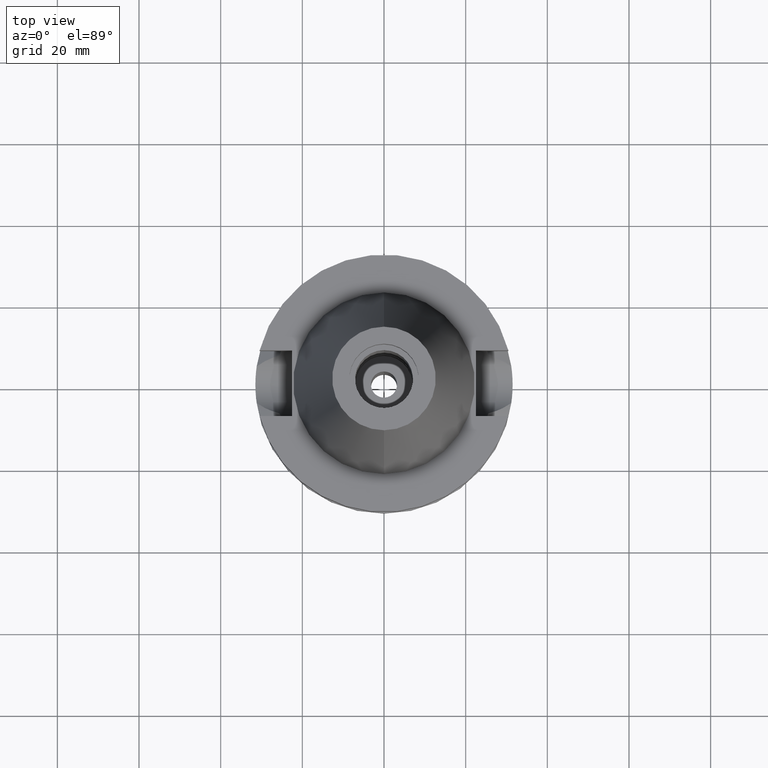
[diagram: clean part render]
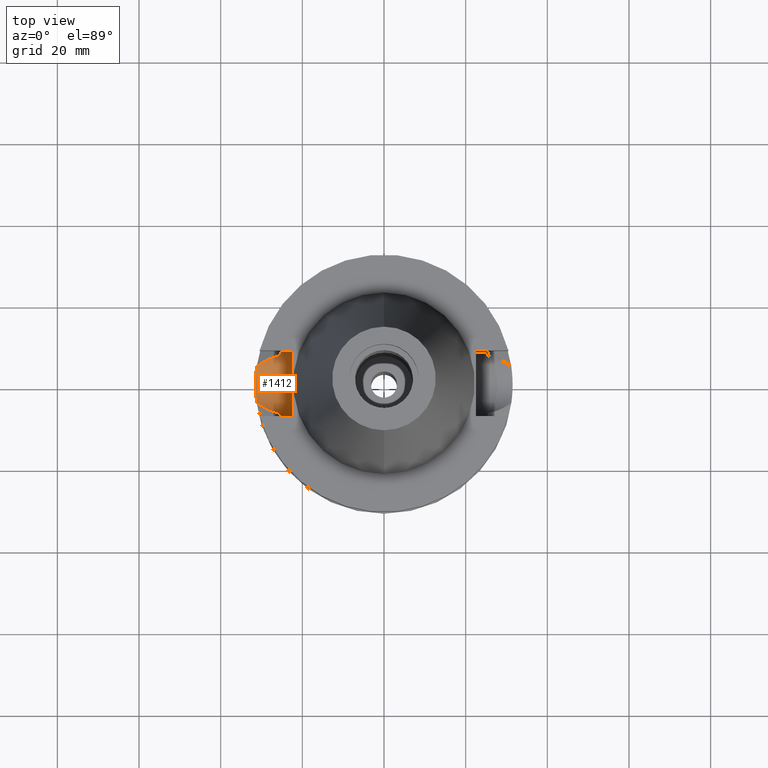
[diagram: same view with one face highlighted and labeled with its STEP entity id]
A machine part, top view. The second image highlights one B-rep face of the part: STEP entity #1412.
In plain terms, the highlighted cylindrical surface (edge-blend (fillet) strip) has radius 8.05 mm, axis along (-1, 0, 0).
Its self-contained STEP definition (entity closure, byte-faithful):
#2 = EDGE_CURVE ( 'NONE', #1198, #42, #3094, .T. ) ;
#3 = CARTESIAN_POINT ( 'NONE',  ( -28.61883714321365346, 5.991211993611456066, -20.32900284995578843 ) ) ;
#10 = ORIENTED_EDGE ( 'NONE', *, *, #698, .T. ) ;
#17 = CARTESIAN_POINT ( 'NONE',  ( -31.17899877608999759, -4.485536235554000051, -21.63449434733000132 ) ) ;
#18 = CARTESIAN_POINT ( 'NONE',  ( -25.31206084004278267, 7.845614529399052905, -16.75329855851851235 ) ) ;
#20 = EDGE_CURVE ( 'NONE', #388, #1972, #1044, .T. ) ;
#36 = CARTESIAN_POINT ( 'NONE',  ( -28.37664392239686606, 6.100223204543339328, -20.20526077322584868 ) ) ;
#42 = VERTEX_POINT ( 'NONE', #568 ) ;
#69 = CARTESIAN_POINT ( 'NONE',  ( -29.71532401695840164, -5.436691314662930097, -20.88878191549011731 ) ) ;
#135 = CARTESIAN_POINT ( 'NONE',  ( -31.17899877608999759, 4.485536235554000051, -21.63449434733000132 ) ) ;
#145 = CARTESIAN_POINT ( 'NONE',  ( -31.47006483083458050, -1.570420134126573775, -22.88512809629085254 ) ) ;
#171 = DIRECTION ( 'NONE',  ( 1.000000000000000000, 0.0000000000000000000, 0.0000000000000000000 ) ) ;
#188 = CARTESIAN_POINT ( 'NONE',  ( -25.27269700110156236, 7.971767412703377964, -16.08147680840639993 ) ) ;
#195 = CARTESIAN_POINT ( 'NONE',  ( -25.37573308857943744, -7.637710303739495110, -17.49818662950806569 ) ) ;
#214 = AXIS2_PLACEMENT_3D ( 'NONE', #666, #1637, #2616 ) ;
#243 = CARTESIAN_POINT ( 'NONE',  ( -25.33293017119234847, -7.777974374871667429, -17.02562462713745361 ) ) ;
#262 = CIRCLE ( 'NONE', #661, 8.050000000000000711 ) ;
#263 = VECTOR ( 'NONE', #2975, 1000.000000000000000 ) ;
#292 = CARTESIAN_POINT ( 'NONE',  ( -29.92556320886829369, 5.316957788948731611, -20.99587041032646795 ) ) ;
#300 = CARTESIAN_POINT ( 'NONE',  ( -30.85566716005951093, -4.730837794846110889, -21.46988817435007135 ) ) ;
#312 = CARTESIAN_POINT ( 'NONE',  ( -25.53175183775000079, -7.097862220092999941, -18.74774300138999905 ) ) ;
#376 = CARTESIAN_POINT ( 'NONE',  ( -31.29155434613432973, -3.622344445574517291, -22.14169315534166671 ) ) ;
#388 = VERTEX_POINT ( 'NONE', #2203 ) ;
#438 = ORIENTED_EDGE ( 'NONE', *, *, #2, .T. ) ;
#447 = CARTESIAN_POINT ( 'NONE',  ( -25.32122245610180400, 7.815962707351904015, -16.87706809357090165 ) ) ;
#455 = CARTESIAN_POINT ( 'NONE',  ( -25.24772266957999634, -8.049999999999997158, -15.58999736273356085 ) ) ;
#493 = CARTESIAN_POINT ( 'NONE',  ( -25.44392837589918699, -7.408239565059870024, -18.11709494172737323 ) ) ;
#533 = CARTESIAN_POINT ( 'NONE',  ( -27.99630131625950114, 6.260814674882757558, -20.01081440634503394 ) ) ;
#568 = CARTESIAN_POINT ( 'NONE',  ( -25.53175183775000079, -7.097862220092999941, -18.74774300138999905 ) ) ;
#642 = LINE ( 'NONE', #3003, #672 ) ;
#648 = DIRECTION ( 'NONE',  ( 0.0000000000000000000, -1.000000000000000000, 0.0000000000000000000 ) ) ;
#661 = AXIS2_PLACEMENT_3D ( 'NONE', #3090, #171, #648 ) ;
#666 = CARTESIAN_POINT ( 'NONE',  ( -31.50000000000000000, 0.0000000000000000000, -14.94999999999999929 ) ) ;
#672 = VECTOR ( 'NONE', #850, 1000.000000000000000 ) ;
#681 = CARTESIAN_POINT ( 'NONE',  ( -25.24772266958000344, -8.050000000000000711, -14.94999999999999929 ) ) ;
#685 = CARTESIAN_POINT ( 'NONE',  ( -25.53175183775000079, 7.097862220092999941, -18.74774300138999905 ) ) ;
#691 = CARTESIAN_POINT ( 'NONE',  ( -31.38373212837024795, 2.710341632984772264, -22.53260975833440227 ) ) ;
#698 = EDGE_CURVE ( 'NONE', #388, #1814, #1259, .T. ) ;
#704 = CARTESIAN_POINT ( 'NONE',  ( -31.47014091591460883, 1.569800303106027251, -22.88544884417187575 ) ) ;
#717 = CARTESIAN_POINT ( 'NONE',  ( -26.79449840331362864, 6.719479771258584755, -19.39575631969516678 ) ) ;
#742 = CARTESIAN_POINT ( 'NONE',  ( -27.56759267593632856, 6.431641193339387996, -19.79151494985046256 ) ) ;
#776 = CARTESIAN_POINT ( 'NONE',  ( -25.53175183775000079, 7.097862220092999941, -18.74774300138999905 ) ) ;
#795 = B_SPLINE_CURVE_WITH_KNOTS ( 'NONE', 3,
 ( #2355, #1439, #493, #1456, #195, #2406, #2597, #243, #907, #2113, #2419, #2849, #455, #681 ),
 .UNSPECIFIED., .F., .F.,
 ( 4, 2, 2, 1, 1, 2, 2, 4 ),
 ( 0.0000000000000000000, 0.2499999999999754641, 0.3749999999999630851, 0.4374999999999556466, 0.4687499999999517608, 0.4843749999999512057, 0.4999999999999505951, 1.000000000000000000 ),
 .UNSPECIFIED. ) ;
#837 = ORIENTED_EDGE ( 'NONE', *, *, #3030, .F. ) ;
#838 = CARTESIAN_POINT ( 'NONE',  ( -31.17899877608999759, -4.485536235554000051, -21.63449434733000132 ) ) ;
#850 = DIRECTION ( 'NONE',  ( -1.000000000000000000, 1.551559937893000172E-14, 1.680856599384000216E-14 ) ) ;
#889 = CARTESIAN_POINT ( 'NONE',  ( -31.39942175770064381, 2.522462273896719953, -22.59713453206252964 ) ) ;
#907 = CARTESIAN_POINT ( 'NONE',  ( -25.32844777903620681, -7.792527725354048584, -16.96974754110885897 ) ) ;
#956 = CARTESIAN_POINT ( 'NONE',  ( -31.17899877608999759, 4.485536235554000051, -21.63449434733000132 ) ) ;
#1009 = CARTESIAN_POINT ( 'NONE',  ( -31.17899877608999759, -4.485536235554000051, -21.63449434733000132 ) ) ;
#1016 = CARTESIAN_POINT ( 'NONE',  ( -27.36173902561492355, 6.509397575667601465, -19.68615276869749664 ) ) ;
#1026 = CARTESIAN_POINT ( 'NONE',  ( -29.23902439686415988, -5.689665267726423004, -20.64570116389015553 ) ) ;
#1044 = LINE ( 'NONE', #2005, #263 ) ;
#1055 = CARTESIAN_POINT ( 'NONE',  ( -25.24772266958000344, -8.050000000000000711, -14.94999999999999929 ) ) ;
#1056 = CARTESIAN_POINT ( 'NONE',  ( -27.91791818722234808, -6.325778374670826487, -19.97107508940342058 ) ) ;
#1107 = CARTESIAN_POINT ( 'NONE',  ( -31.50001712310213620, -0.7926383445690665663, -23.00007365985223018 ) ) ;
#1168 = EDGE_CURVE ( 'NONE', #2659, #1814, #1489, .T. ) ;
#1195 = CARTESIAN_POINT ( 'NONE',  ( -31.27141562376842288, 3.805445729920238218, -22.05502235412102863 ) ) ;
#1198 = VERTEX_POINT ( 'NONE', #17 ) ;
#1208 = CARTESIAN_POINT ( 'NONE',  ( -29.08039899388900196, 5.770905815522946014, -20.56470933436780157 ) ) ;
#1209 = CARTESIAN_POINT ( 'NONE',  ( -25.43789037938550379, 7.435491690476241367, -18.11672414061894898 ) ) ;
#1259 = B_SPLINE_CURVE_WITH_KNOTS ( 'NONE', 3,
 ( #1609, #2572, #2329, #188, #2414, #1671, #2362, #18, #1943, #2907, #447, #3119, #1209, #1660 ),
 .UNSPECIFIED., .F., .F.,
 ( 4, 2, 2, 1, 1, 2, 2, 4 ),
 ( 0.0000000000000000000, 0.2500000000000029421, 0.3750000000000057176, 0.4375000000000057732, 0.4687500000000042744, 0.4843750000000034417, 0.5000000000000025535, 1.000000000000000000 ),
 .UNSPECIFIED. ) ;
#1264 = CARTESIAN_POINT ( 'NONE',  ( -30.49988824974146695, -4.971524544256481271, -21.28877941431118970 ) ) ;
#1281 = CARTESIAN_POINT ( 'NONE',  ( -26.81195495032019593, -6.745956321615020457, -19.40544405722906873 ) ) ;
#1310 = ORIENTED_EDGE ( 'NONE', *, *, #1729, .T. ) ;
#1341 = CARTESIAN_POINT ( 'NONE',  ( -31.35088811482348348, -3.082665263967356850, -22.39703123798121354 ) ) ;
#1412 = ADVANCED_FACE ( 'NONE', ( #1809 ), #2808, .F. ) ;
#1434 = CARTESIAN_POINT ( 'NONE',  ( -31.33117692260842801, 3.261988001766285450, -22.31220474935663489 ) ) ;
#1439 = CARTESIAN_POINT ( 'NONE',  ( -25.48482038766597313, -7.266679548433788050, -18.43222872448825100 ) ) ;
#1456 = CARTESIAN_POINT ( 'NONE',  ( -25.39164951572487894, -7.584807667336962211, -17.65197957159464082 ) ) ;
#1489 = B_SPLINE_CURVE_WITH_KNOTS ( 'NONE', 3,
 ( #1737, #1923, #2698, #292, #2153, #2413, #1208, #3, #36, #533, #2886, #742, #1982, #1498, #1016, #717, #2427, #776 ),
 .UNSPECIFIED., .F., .F.,
 ( 4, 2, 2, 2, 2, 1, 1, 2, 2, 4 ),
 ( 0.0000000000000000000, 0.2499999999999962252, 0.3749999999999940048, 0.4999999999999917843, 0.6249999999999895639, 0.6874999999999891198, 0.7187499999999887867, 0.7343749999999893419, 0.7499999999999898970, 1.000000000000000000 ),
 .UNSPECIFIED. ) ;
#1498 = CARTESIAN_POINT ( 'NONE',  ( -27.39725008970879117, 6.496136476067881915, -19.70433075667453693 ) ) ;
#1577 = CARTESIAN_POINT ( 'NONE',  ( -31.22605527071346643, -4.148998008600059961, -21.85135399485416841 ) ) ;
#1609 = CARTESIAN_POINT ( 'NONE',  ( -25.24772266958000344, 8.050000000000000711, -14.94999999999999929 ) ) ;
#1637 = DIRECTION ( 'NONE',  ( -1.000000000000000000, 0.0000000000000000000, 0.0000000000000000000 ) ) ;
#1660 = CARTESIAN_POINT ( 'NONE',  ( -25.53175183775000079, 7.097862220092999941, -18.74774300138999905 ) ) ;
#1671 = CARTESIAN_POINT ( 'NONE',  ( -25.29454954118293131, 7.902007388340077654, -16.48871296865240410 ) ) ;
#1729 = EDGE_CURVE ( 'NONE', #2148, #1972, #262, .T. ) ;
#1737 = CARTESIAN_POINT ( 'NONE',  ( -31.17899877608999759, 4.485536235554000051, -21.63449434733000132 ) ) ;
#1763 = ORIENTED_EDGE ( 'NONE', *, *, #2950, .F. ) ;
#1808 = CARTESIAN_POINT ( 'NONE',  ( -22.50000000000000000, 8.050000000000000711, -14.94999999999999929 ) ) ;
#1809 = FACE_OUTER_BOUND ( 'NONE', #1930, .T. ) ;
#1814 = VERTEX_POINT ( 'NONE', #685 ) ;
#1815 = CARTESIAN_POINT ( 'NONE',  ( -31.20293914673900915, -4.319126524894971730, -21.74616125111140263 ) ) ;
#1824 = CARTESIAN_POINT ( 'NONE',  ( -22.50000000000000000, -8.050000000000000711, -14.94999999999999929 ) ) ;
#1883 = ORIENTED_EDGE ( 'NONE', *, *, #1168, .F. ) ;
#1923 = CARTESIAN_POINT ( 'NONE',  ( -30.86112095468211081, 4.726700171866855094, -21.47266466825546161 ) ) ;
#1930 = EDGE_LOOP ( 'NONE', ( #2405, #1763, #1310, #2581, #10, #1883, #837, #438 ) ) ;
#1943 = CARTESIAN_POINT ( 'NONE',  ( -25.31652402624244047, 7.831177078177598005, -16.81429685341876379 ) ) ;
#1972 = VERTEX_POINT ( 'NONE', #1808 ) ;
#1982 = CARTESIAN_POINT ( 'NONE',  ( -27.46559892851986362, 6.470389082572618022, -19.73931484959222260 ) ) ;
#1995 = CARTESIAN_POINT ( 'NONE',  ( -29.07366700018058836, -5.772145045828368737, -20.56127400145020800 ) ) ;
#2005 = CARTESIAN_POINT ( 'NONE',  ( -25.24772266958000344, 8.050000000000000711, -14.94999999999999929 ) ) ;
#2064 = CARTESIAN_POINT ( 'NONE',  ( -31.49998286221021004, 0.7939987288854174485, -22.99992628266776862 ) ) ;
#2113 = CARTESIAN_POINT ( 'NONE',  ( -25.32550670071060850, -7.802071535306276395, -16.93256103013005287 ) ) ;
#2148 = VERTEX_POINT ( 'NONE', #1824 ) ;
#2153 = CARTESIAN_POINT ( 'NONE',  ( -29.72262445055801194, 5.432525443549970134, -20.89238680196415032 ) ) ;
#2203 = CARTESIAN_POINT ( 'NONE',  ( -25.24772266958000344, 8.050000000000000711, -14.94999999999999929 ) ) ;
#2302 = CARTESIAN_POINT ( 'NONE',  ( -31.38545342354494139, -2.710832595742835860, -22.54018087763055433 ) ) ;
#2329 = CARTESIAN_POINT ( 'NONE',  ( -25.25396625246039406, 8.030896711162142765, -15.59378553529055900 ) ) ;
#2355 = CARTESIAN_POINT ( 'NONE',  ( -25.53175183775000079, -7.097862220092999941, -18.74774300138999905 ) ) ;
#2362 = CARTESIAN_POINT ( 'NONE',  ( -25.30215890781841992, 7.877570599498848303, -16.61088255777515243 ) ) ;
#2405 = ORIENTED_EDGE ( 'NONE', *, *, #2702, .T. ) ;
#2406 = CARTESIAN_POINT ( 'NONE',  ( -25.35412323723021899, -7.708830947932256983, -17.27007949472962167 ) ) ;
#2413 = CARTESIAN_POINT ( 'NONE',  ( -29.29923135315856797, 5.659886605233277912, -20.67639207771007293 ) ) ;
#2414 = CARTESIAN_POINT ( 'NONE',  ( -25.28050147970205330, 7.946982733726524195, -16.24437200640843315 ) ) ;
#2419 = CARTESIAN_POINT ( 'NONE',  ( -25.32419709970849198, -7.806318959900148791, -16.91578803901756345 ) ) ;
#2427 = CARTESIAN_POINT ( 'NONE',  ( -26.19531547285233231, 6.915459947427307519, -19.08864711194411967 ) ) ;
#2480 = CARTESIAN_POINT ( 'NONE',  ( -28.90787425853358883, -5.853261068877619877, -20.47661666503943678 ) ) ;
#2545 = CARTESIAN_POINT ( 'NONE',  ( -31.27028647256796390, -3.801301904420796962, -22.04879116226246083 ) ) ;
#2572 = CARTESIAN_POINT ( 'NONE',  ( -25.24772266958000344, 8.050000000000000711, -15.27000344021509370 ) ) ;
#2581 = ORIENTED_EDGE ( 'NONE', *, *, #20, .F. ) ;
#2597 = CARTESIAN_POINT ( 'NONE',  ( -25.34388450889786526, -7.742333382928201502, -17.15666984720025923 ) ) ;
#2616 = DIRECTION ( 'NONE',  ( 0.0000000000000000000, 0.0000000000000000000, -1.000000000000000000 ) ) ;
#2637 = CARTESIAN_POINT ( 'NONE',  ( -31.34953802612839979, 3.080756339134786082, -22.38983638826563904 ) ) ;
#2659 = VERTEX_POINT ( 'NONE', #135 ) ;
#2686 = B_SPLINE_CURVE_WITH_KNOTS ( 'NONE', 3,
 ( #838, #1815, #1577, #2545, #376, #1341, #2302, #145, #1107, #2064, #704, #889, #691, #2637, #1434, #1195, #3082, #956 ),
 .UNSPECIFIED., .F., .F.,
 ( 4, 2, 2, 2, 2, 2, 2, 2, 4 ),
 ( 0.0000000000000000000, 0.06249999999999972244, 0.1249999999999995559, 0.2499999999999995559, 0.5000000000000000000, 0.7500000000000004441, 0.8125000000000003331, 0.8750000000000003331, 1.000000000000000000 ),
 .UNSPECIFIED. ) ;
#2698 = CARTESIAN_POINT ( 'NONE',  ( -30.50800601737823214, 4.966106917096341000, -21.29277997411921319 ) ) ;
#2702 = EDGE_CURVE ( 'NONE', #42, #2976, #795, .T. ) ;
#2721 = CARTESIAN_POINT ( 'NONE',  ( -28.96241475777838659, -5.826829769039167495, -20.50446749851603556 ) ) ;
#2736 = CARTESIAN_POINT ( 'NONE',  ( -29.39981889278854865, -5.605877745457628514, -20.72777599735866616 ) ) ;
#2808 = CYLINDRICAL_SURFACE ( 'NONE', #214, 8.050000000000000711 ) ;
#2849 = CARTESIAN_POINT ( 'NONE',  ( -25.27269391207093463, -7.973288729732005642, -16.24537813257536811 ) ) ;
#2886 = CARTESIAN_POINT ( 'NONE',  ( -27.80186762658108535, 6.340377822889694315, -19.91138290995815296 ) ) ;
#2907 = CARTESIAN_POINT ( 'NONE',  ( -25.31954826170012396, 7.821386849065740776, -16.85495274080560435 ) ) ;
#2945 = CARTESIAN_POINT ( 'NONE',  ( -29.91754894283307920, -5.321752638521542345, -20.99192593828730935 ) ) ;
#2950 = EDGE_CURVE ( 'NONE', #2148, #2976, #642, .T. ) ;
#2975 = DIRECTION ( 'NONE',  ( 1.000000000000000000, 1.486911607147000170E-14, -1.680856599384000216E-14 ) ) ;
#2976 = VERTEX_POINT ( 'NONE', #1055 ) ;
#3003 = CARTESIAN_POINT ( 'NONE',  ( -22.50000000000000000, -8.050000000000000711, -14.94999999999999929 ) ) ;
#3030 = EDGE_CURVE ( 'NONE', #1198, #2659, #2686, .T. ) ;
#3082 = CARTESIAN_POINT ( 'NONE',  ( -31.22685090768407079, 4.152915680507866192, -21.85769470847166929 ) ) ;
#3090 = CARTESIAN_POINT ( 'NONE',  ( -22.50000000000000000, 0.0000000000000000000, -14.94999999999999929 ) ) ;
#3094 = B_SPLINE_CURVE_WITH_KNOTS ( 'NONE', 3,
 ( #1009, #300, #1264, #2945, #69, #2736, #1026, #1995, #2721, #2480, #1056, #1281, #312 ),
 .UNSPECIFIED., .F., .F.,
 ( 4, 2, 2, 1, 2, 2, 4 ),
 ( 0.0000000000000000000, 0.2500000000000025535, 0.3750000000000048850, 0.4375000000000054956, 0.4687500000000047740, 0.5000000000000041078, 1.000000000000000000 ),
 .UNSPECIFIED. ) ;
#3119 = CARTESIAN_POINT ( 'NONE',  ( -25.36818832151706005, 7.663695285312909000, -17.48840541837265405 ) ) ;